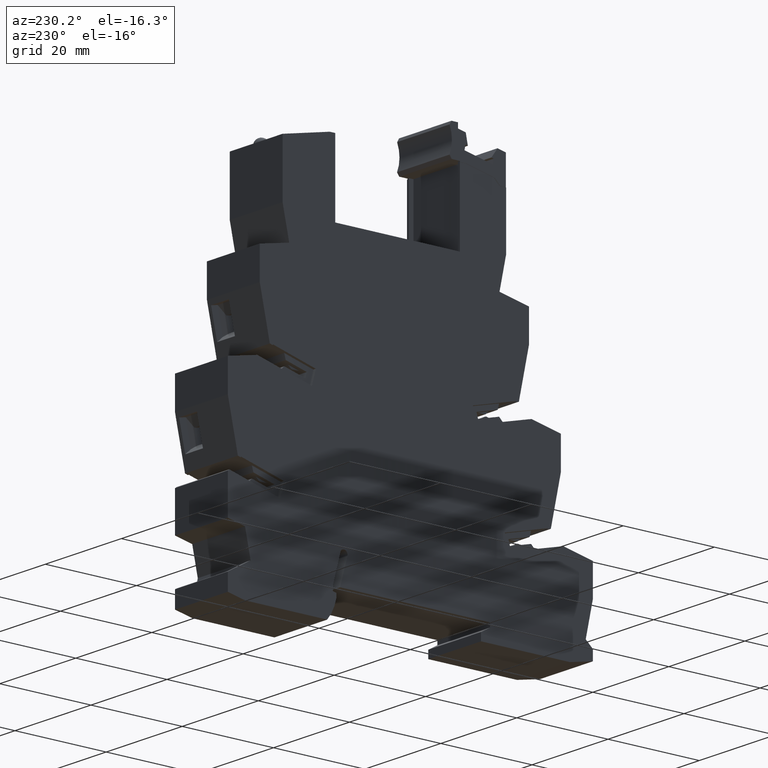
[diagram: clean part render]
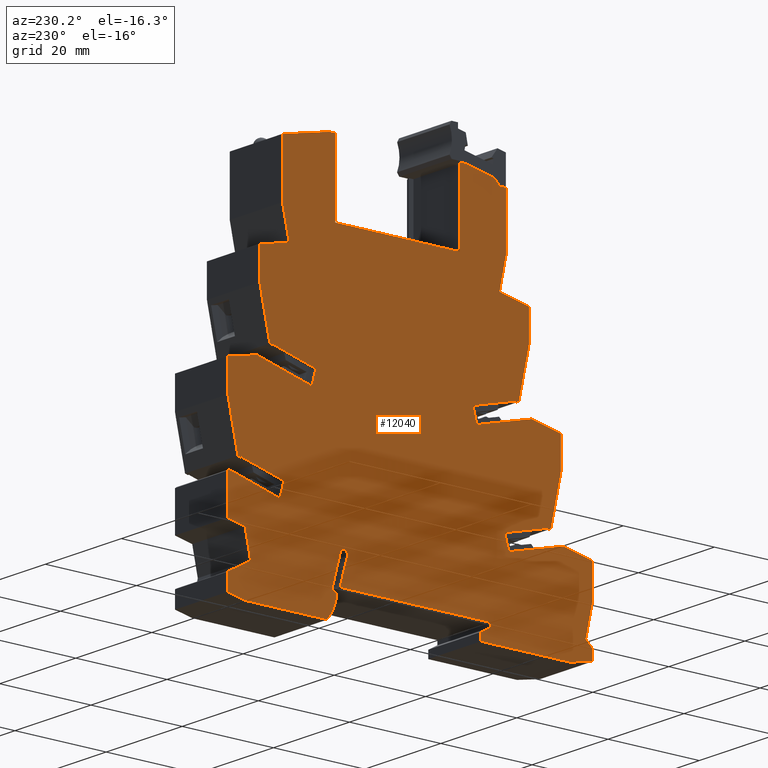
[diagram: same view with one face highlighted and labeled with its STEP entity id]
A machine part, auxiliary view. The second image highlights one B-rep face of the part: STEP entity #12040.
In plain terms, the highlighted planar face has unit normal (-1, -0, 0).
Its self-contained STEP definition (entity closure, byte-faithful):
#6190=CARTESIAN_POINT('',(-16.9245579999999,42.8260049999997,
-0.800000000002775));
#6200=DIRECTION('',(6.05765437811101E-15,-0.,1.));
#6210=DIRECTION('',(1.,0.,-6.05765437811101E-15));
#6220=AXIS2_PLACEMENT_3D('',#6190,#6200,#6210);
#6230=PLANE('',#6220);
#6240=CARTESIAN_POINT('',(13.902360681366,76.6053697053433,
-0.800000000002909));
#6250=DIRECTION('',(0.978147600733792,-0.207911690817823,
-1.13595970351826E-28));
#6260=VECTOR('',#6250,1.);
#6270=LINE('',#6240,#6260);
#6280=CARTESIAN_POINT('',(13.457160147901,76.6999999699404,
-0.800000000002907));
#6290=VERTEX_POINT('',#6280);
#6300=CARTESIAN_POINT('',(19.6798291213013,75.3773308785931,
-0.800000000002907));
#6310=VERTEX_POINT('',#6300);
#6320=EDGE_CURVE('',#6290,#6310,#6270,.T.);
#6330=ORIENTED_EDGE('',*,*,#6320,.F.);
#6340=CARTESIAN_POINT('',(43.9513383518614,51.105821648028,
-0.800000000002909));
#6350=DIRECTION('',(0.707106781186473,-0.707106781186622,
1.38839519318898E-28));
#6360=VECTOR('',#6350,1.);
#6370=LINE('',#6340,#6360);
#6380=CARTESIAN_POINT('',(20.9071599998747,74.1500000000195,
-0.800000000002909));
#6390=VERTEX_POINT('',#6380);
#6400=EDGE_CURVE('',#6310,#6390,#6370,.T.);
#6410=ORIENTED_EDGE('',*,*,#6400,.F.);
#6420=CARTESIAN_POINT('',(13.9023606813659,74.15000000002,
-0.800000000002909));
#6430=DIRECTION('',(1.,-6.25650888100443E-14,-1.89326617253043E-28));
#6440=VECTOR('',#6430,1.);
#6450=LINE('',#6420,#6440);
#6460=CARTESIAN_POINT('',(22.2071599998067,74.1500000000194,
-0.800000000002909));
#6470=VERTEX_POINT('',#6460);
#6480=EDGE_CURVE('',#6390,#6470,#6450,.T.);
#6490=ORIENTED_EDGE('',*,*,#6480,.F.);
#6500=CARTESIAN_POINT('',(13.9023606813659,74.1500000000385,
-0.800000000002909));
#6510=DIRECTION('',(-1.,6.25650888220284E-14,1.89326617253043E-28));
#6520=VECTOR('',#6510,1.);
#6530=LINE('',#6500,#6520);
#6540=CARTESIAN_POINT('',(22.3071599999996,74.1500000000194,
-0.800000000002909));
#6550=VERTEX_POINT('',#6540);
#6560=EDGE_CURVE('',#6550,#6470,#6530,.T.);
#6570=ORIENTED_EDGE('',*,*,#6560,.T.);
#6580=CARTESIAN_POINT('',(22.3071599999982,51.1058216480293,
-0.800000000002909));
#6590=DIRECTION('',(6.25650888248224E-14,1.,-3.81404366214674E-28));
#6600=VECTOR('',#6590,1.);
#6610=LINE('',#6580,#6600);
#6620=CARTESIAN_POINT('',(22.3071599999989,62.4210968244649,
-0.800000000003014));
#6630=VERTEX_POINT('',#6620);
#6640=EDGE_CURVE('',#6630,#6550,#6610,.T.);
#6650=ORIENTED_EDGE('',*,*,#6640,.T.);
#6660=CARTESIAN_POINT('',(19.9020240141431,51.1058216480295,
-0.800000000002909));
#6670=DIRECTION('',(0.20791169081797,0.978147600733761,
-4.1336311433581E-28));
#6680=VECTOR('',#6670,1.);
#6690=LINE('',#6660,#6680);
#6700=CARTESIAN_POINT('',(20.8513856934908,55.5722171894691,
-0.800000000003004));
#6710=VERTEX_POINT('',#6700);
#6720=EDGE_CURVE('',#6710,#6630,#6690,.T.);
#6730=ORIENTED_EDGE('',*,*,#6720,.T.);
#6740=CARTESIAN_POINT('',(13.9023606813648,57.0492780530082,
-0.800000000002909));
#6750=DIRECTION('',(-0.97814760073373,0.207911690818114,
1.0097419586829E-28));
#6760=VECTOR('',#6750,1.);
#6770=LINE('',#6740,#6760);
#6780=CARTESIAN_POINT('',(27.3071599999254,54.1999999999732,
-0.800000000003043));
#6790=VERTEX_POINT('',#6780);
#6800=EDGE_CURVE('',#6790,#6710,#6770,.T.);
#6810=ORIENTED_EDGE('',*,*,#6800,.T.);
#6820=CARTESIAN_POINT('',(27.3071599999252,51.105821648029,
-0.800000000002909));
#6830=DIRECTION('',(7.52336794624177E-14,1.,-3.81404366214676E-28));
#6840=VECTOR('',#6830,1.);
#6850=LINE('',#6820,#6840);
#6860=CARTESIAN_POINT('',(27.3071599999249,47.4663726134532,
-0.800000000002909));
#6870=VERTEX_POINT('',#6860);
#6880=EDGE_CURVE('',#6870,#6790,#6850,.T.);
#6890=ORIENTED_EDGE('',*,*,#6880,.T.);
#6900=CARTESIAN_POINT('',(28.0807487730885,51.105821648029,
-0.800000000002909));
#6910=DIRECTION('',(0.207911690817972,0.978147600733761,
-4.1336311433581E-28));
#6920=VECTOR('',#6910,1.);
#6930=LINE('',#6900,#6920);
#6940=CARTESIAN_POINT('',(25.103072832219,37.0969577603597,
-0.800000000002909));
#6950=VERTEX_POINT('',#6940);
#6960=EDGE_CURVE('',#6950,#6870,#6930,.T.);
#6970=ORIENTED_EDGE('',*,*,#6960,.T.);
#6980=CARTESIAN_POINT('',(13.9023606813634,34.0957359848845,
-0.800000000002909));
#6990=DIRECTION('',(0.965925826289068,0.258819045102521,
-2.77679038637796E-28));
#7000=VECTOR('',#6990,1.);
#7010=LINE('',#6980,#7000);
#7020=CARTESIAN_POINT('',(24.4618552155885,36.925144017811,
-0.800000000002909));
#7030=VERTEX_POINT('',#7020);
#7040=EDGE_CURVE('',#7030,#6950,#7010,.T.);
#7050=ORIENTED_EDGE('',*,*,#7040,.T.);
#7060=CARTESIAN_POINT('',(20.6621540964455,51.1058216480294,
-0.800000000002909));
#7070=DIRECTION('',(0.258819045102513,-0.965925826289071,
3.18699805709289E-28));
#7080=VECTOR('',#7070,1.);
#7090=LINE('',#7060,#7080);
#7100=CARTESIAN_POINT('',(24.4230395694981,37.0700059811492,
-0.800000000003026));
#7110=VERTEX_POINT('',#7100);
#7120=EDGE_CURVE('',#7110,#7030,#7090,.T.);
#7130=ORIENTED_EDGE('',*,*,#7120,.T.);
#7140=CARTESIAN_POINT('',(13.9023606813634,34.2509985692488,
-0.800000000002909));
#7150=DIRECTION('',(0.965925826289124,0.258819045102314,
-2.77679038637796E-28));
#7160=VECTOR('',#7150,1.);
#7170=LINE('',#7140,#7160);
#7180=CARTESIAN_POINT('',(15.0222525707411,34.5510726569345,
-0.800000000002969));
#7190=VERTEX_POINT('',#7180);
#7200=EDGE_CURVE('',#7190,#7110,#7170,.T.);
#7210=ORIENTED_EDGE('',*,*,#7200,.T.);
#7220=CARTESIAN_POINT('',(24.2801845867909,-1.98951966012828E-13,
-0.800000000003025));
#7230=DIRECTION('',(-0.258819045102392,0.965925826289103,
1.55816713284503E-15));
#7240=VECTOR('',#7230,1.);
#7250=LINE('',#7220,#7240);
#7260=CARTESIAN_POINT('',(15.8763554096513,31.3635174672313,
-0.800000000002975));
#7270=VERTEX_POINT('',#7260);
#7280=EDGE_CURVE('',#7270,#7190,#7250,.T.);
#7290=ORIENTED_EDGE('',*,*,#7280,.T.);
#7300=CARTESIAN_POINT('',(13.9023606813632,30.8345871739233,
-0.800000000002909));
#7310=DIRECTION('',(-0.965925826289082,-0.258819045102471,
2.90300813121332E-28));
#7320=VECTOR('',#7310,1.);
#7330=LINE('',#7300,#7320);
#7340=CARTESIAN_POINT('',(27.8513857524815,34.5722171769302,
-0.800000000003047));
#7350=VERTEX_POINT('',#7340);
#7360=EDGE_CURVE('',#7350,#7270,#7330,.T.);
#7370=ORIENTED_EDGE('',*,*,#7360,.T.);
#7380=CARTESIAN_POINT('',(13.9023606813636,37.5371739847012,
-0.800000000002909));
#7390=DIRECTION('',(-0.97814760073373,0.207911690818114,
1.0097419586829E-28));
#7400=VECTOR('',#7390,1.);
#7410=LINE('',#7380,#7400);
#7420=CARTESIAN_POINT('',(34.3071599999265,33.1999999999729,
-0.800000000003085));
#7430=VERTEX_POINT('',#7420);
#7440=EDGE_CURVE('',#7430,#7350,#7410,.T.);
#7450=ORIENTED_EDGE('',*,*,#7440,.T.);
#7460=CARTESIAN_POINT('',(34.3071599999278,51.1058216480286,
-0.800000000002909));
#7470=DIRECTION('',(7.52336794680823E-14,1.,-3.81404366214677E-28));
#7480=VECTOR('',#7470,1.);
#7490=LINE('',#7460,#7480);
#7500=CARTESIAN_POINT('',(34.307159999926,26.4663740067623,
-0.800000000002909));
#7510=VERTEX_POINT('',#7500);
#7520=EDGE_CURVE('',#7510,#7430,#7490,.T.);
#7530=ORIENTED_EDGE('',*,*,#7520,.T.);
#7540=CARTESIAN_POINT('',(39.5444362720076,51.1058216480283,
-0.800000000002909));
#7550=DIRECTION('',(0.207911690817972,0.978147600733761,
-4.1336311433581E-28));
#7560=VECTOR('',#7550,1.);
#7570=LINE('',#7540,#7560);
#7580=CARTESIAN_POINT('',(32.1030725181768,16.0969576762118,
-0.800000000003072));
#7590=VERTEX_POINT('',#7580);
#7600=EDGE_CURVE('',#7590,#7510,#7570,.T.);
#7610=ORIENTED_EDGE('',*,*,#7600,.T.);
#7620=CARTESIAN_POINT('',(13.9023606813619,11.2200916378656,
-0.800000000002909));
#7630=DIRECTION('',(0.965925826289068,0.258819045102521,
-2.77679038637796E-28));
#7640=VECTOR('',#7630,1.);
#7650=LINE('',#7620,#7640);
#7660=CARTESIAN_POINT('',(31.4618552155888,15.9251440178104,
-0.800000000003068));
#7670=VERTEX_POINT('',#7660);
#7680=EDGE_CURVE('',#7670,#7590,#7650,.T.);
#7690=ORIENTED_EDGE('',*,*,#7680,.T.);
#7700=CARTESIAN_POINT('',(35.7289846945104,-1.98951966012828E-13,
-0.800000000003094));
#7710=DIRECTION('',(0.25881904510252,-0.965925826289068,
-1.57204492066405E-15));
#7720=VECTOR('',#7710,1.);
#7730=LINE('',#7700,#7720);
#7740=CARTESIAN_POINT('',(31.4230395794324,16.070005944074,
-0.800000000003068));
#7750=VERTEX_POINT('',#7740);
#7760=EDGE_CURVE('',#7750,#7670,#7730,.T.);
#7770=ORIENTED_EDGE('',*,*,#7760,.T.);
#7780=CARTESIAN_POINT('',(0.207621999999484,7.7058600122735,
-0.800000000002879));
#7790=DIRECTION('',(0.965925826289137,0.258819045102265,
-5.83454228237228E-15));
#7800=VECTOR('',#7790,1.);
#7810=LINE('',#7780,#7800);
#7820=CARTESIAN_POINT('',(22.0198027403499,13.5504162268059,
-0.800000000003011));
#7830=VERTEX_POINT('',#7820);
#7840=EDGE_CURVE('',#7830,#7750,#7810,.T.);
#7850=ORIENTED_EDGE('',*,*,#7840,.T.);
#7860=CARTESIAN_POINT('',(25.6506258254262,-1.98951966012828E-13,
-0.800000000003034));
#7870=DIRECTION('',(-0.258819045102391,0.965925826289103,
1.57204492065281E-15));
#7880=VECTOR('',#7870,1.);
#7890=LINE('',#7860,#7880);
#7900=CARTESIAN_POINT('',(22.8739055792484,10.3628610371462,
-0.800000000003017));
#7910=VERTEX_POINT('',#7900);
#7920=EDGE_CURVE('',#7910,#7830,#7890,.T.);
#7930=ORIENTED_EDGE('',*,*,#7920,.T.);
#7940=CARTESIAN_POINT('',(13.9023606813617,7.95894282689689,
-0.800000000002909));
#7950=DIRECTION('',(-0.965925826289042,-0.258819045102618,
2.77679038637796E-28));
#7960=VECTOR('',#7950,1.);
#7970=LINE('',#7940,#7960);
#7980=CARTESIAN_POINT('',(34.8513856870555,13.5722171593942,
-0.800000000003089));
#7990=VERTEX_POINT('',#7980);
#8000=EDGE_CURVE('',#7990,#7910,#7970,.T.);
#8010=ORIENTED_EDGE('',*,*,#8000,.T.);
#8020=CARTESIAN_POINT('',(13.9023606813624,18.0250698849491,
-0.800000000002909));
#8030=DIRECTION('',(-0.978147600733754,0.207911690818003,
1.0097419586829E-28));
#8040=VECTOR('',#8030,1.);
#8050=LINE('',#8020,#8040);
#8060=CARTESIAN_POINT('',(41.3071598519146,12.1999999999919,
-0.800000000003128));
#8070=VERTEX_POINT('',#8060);
#8080=EDGE_CURVE('',#8070,#7990,#8050,.T.);
#8090=ORIENTED_EDGE('',*,*,#8080,.T.);
#8100=CARTESIAN_POINT('',(41.3071598519131,51.1058216480282,
-0.800000000002909));
#8110=DIRECTION('',(-3.84531582535338E-14,1.,-3.81404366214656E-28));
#8120=VECTOR('',#8110,1.);
#8130=LINE('',#8100,#8120);
#8140=CARTESIAN_POINT('',(41.3071598519149,5.46637122094938,
-0.800000000003128));
#8150=VERTEX_POINT('',#8140);
#8160=EDGE_CURVE('',#8150,#8070,#8130,.T.);
#8170=ORIENTED_EDGE('',*,*,#8160,.T.);
#8180=CARTESIAN_POINT('',(51.0081245112033,51.1058216480275,
-0.800000000002909));
#8190=DIRECTION('',(0.207911690817746,0.978147600733809,
-4.1336311433581E-28));
#8200=VECTOR('',#8190,1.);
#8210=LINE('',#8180,#8200);
#8220=CARTESIAN_POINT('',(39.7528218855734,-1.84621397580662,
-0.800000000003119));
#8230=VERTEX_POINT('',#8220);
#8240=EDGE_CURVE('',#8230,#8150,#8210,.T.);
#8250=ORIENTED_EDGE('',*,*,#8240,.T.);
#8260=CARTESIAN_POINT('',(13.9023606813626,21.4296458395488,
-0.800000000002909));
#8270=DIRECTION('',(-0.743144825475685,0.669130606360757,
-1.13595970351826E-28));
#8280=VECTOR('',#8270,1.);
#8290=LINE('',#8260,#8280);
#8300=CARTESIAN_POINT('',(41.3071599999469,-3.24574630020197,
-0.800000000003128));
#8310=VERTEX_POINT('',#8300);
#8320=EDGE_CURVE('',#8310,#8230,#8290,.T.);
#8330=ORIENTED_EDGE('',*,*,#8320,.T.);
#8340=CARTESIAN_POINT('',(41.3071599999503,51.1058216480282,
-0.800000000002909));
#8350=DIRECTION('',(6.2927737309785E-14,1.,-3.81404366214674E-28));
#8360=VECTOR('',#8350,1.);
#8370=LINE('',#8340,#8360);
#8380=CARTESIAN_POINT('',(41.3071599999468,-5.42658936356421,
-0.800000000002909));
#8390=VERTEX_POINT('',#8380);
#8400=EDGE_CURVE('',#8390,#8310,#8370,.T.);
#8410=ORIENTED_EDGE('',*,*,#8400,.T.);
#8420=CARTESIAN_POINT('',(13.9023606813605,-11.2516592799779,
-0.800000000002909));
#8430=DIRECTION('',(0.97814760073382,0.207911690817693,
-2.6505726415426E-28));
#8440=VECTOR('',#8430,1.);
#8450=LINE('',#8420,#8440);
#8460=CARTESIAN_POINT('',(36.2571599999291,-6.50000000000123,
-0.800000000002909));
#8470=VERTEX_POINT('',#8460);
#8480=EDGE_CURVE('',#8470,#8390,#8450,.T.);
#8490=ORIENTED_EDGE('',*,*,#8480,.T.);
#8500=CARTESIAN_POINT('',(13.9023606813608,-6.49999999999982,
-0.800000000002909));
#8510=DIRECTION('',(1.,-6.27464130514497E-14,-1.89326617253043E-28));
#8520=VECTOR('',#8510,1.);
#8530=LINE('',#8500,#8520);
#8540=CARTESIAN_POINT('',(16.8071599999436,-6.5,-0.800000000002909));
#8550=VERTEX_POINT('',#8540);
#8560=EDGE_CURVE('',#8550,#8470,#8530,.T.);
#8570=ORIENTED_EDGE('',*,*,#8560,.T.);
#8580=CARTESIAN_POINT('',(16.8071599999472,51.1058216480297,
-0.800000000002909));
#8590=DIRECTION('',(-6.2746413039548E-14,-1.,3.81404366214674E-28));
#8600=VECTOR('',#8590,1.);
#8610=LINE('',#8580,#8600);
#8620=CARTESIAN_POINT('',(16.8071599999437,-4.85470053837341,
-0.800000000002909));
#8630=VERTEX_POINT('',#8620);
#8640=EDGE_CURVE('',#8630,#8550,#8610,.T.);
#8650=ORIENTED_EDGE('',*,*,#8640,.T.);
#8660=CARTESIAN_POINT('',(13.9023606813608,-6.53178720689883,
-0.800000000002909));
#8670=DIRECTION('',(-0.86602540378447,-0.499999999999945,
3.66031460022549E-28));
#8680=VECTOR('',#8670,1.);
#8690=LINE('',#8660,#8680);
#8700=CARTESIAN_POINT('',(18.8071599999436,-3.69999999999438,
-0.800000000002909));
#8710=VERTEX_POINT('',#8700);
#8720=EDGE_CURVE('',#8710,#8630,#8690,.T.);
#8730=ORIENTED_EDGE('',*,*,#8720,.T.);
#8740=CARTESIAN_POINT('',(18.807159999947,51.1058216480296,
-0.800000000002909));
#8750=DIRECTION('',(-6.2746413039548E-14,-1.,3.81404366214674E-28));
#8760=VECTOR('',#8750,1.);
#8770=LINE('',#8740,#8760);
#8780=CARTESIAN_POINT('',(18.8071599999437,-2.79999999999438,
-0.800000000002909));
#8790=VERTEX_POINT('',#8780);
#8800=EDGE_CURVE('',#8790,#8710,#8770,.T.);
#8810=ORIENTED_EDGE('',*,*,#8800,.T.);
#8820=CARTESIAN_POINT('',(13.9023606813611,-2.79999999999408,
-0.800000000002909));
#8830=DIRECTION('',(1.,-6.29277373059034E-14,-1.89326617253043E-28));
#8840=VECTOR('',#8830,1.);
#8850=LINE('',#8820,#8840);
#8860=CARTESIAN_POINT('',(-14.0928400000563,-2.79999999999233,
-0.800000000002909));
#8870=VERTEX_POINT('',#8860);
#8880=EDGE_CURVE('',#8870,#8790,#8850,.T.);
#8890=ORIENTED_EDGE('',*,*,#8880,.T.);
#8900=CARTESIAN_POINT('',(1.00795034693147,51.1058216480307,
-0.800000000002909));
#8910=DIRECTION('',(-0.269748530351999,-0.962930802484237,
4.19674001577578E-28));
#8920=VECTOR('',#8910,1.);
#8930=LINE('',#8900,#8920);
#8940=CARTESIAN_POINT('',(-12.4724953580686,2.98420117572594,
-0.800000000002909));
#8950=VERTEX_POINT('',#8940);
#8960=EDGE_CURVE('',#8950,#8870,#8930,.T.);
#8970=ORIENTED_EDGE('',*,*,#8960,.T.);
#8980=CARTESIAN_POINT('',(-13.242840000056,3.20000000000755,
-0.800000000002909));
#8990=DIRECTION('',(-6.27941947176454E-14,4.3091449959983E-27,1.));
#9000=DIRECTION('',(-1.,6.29277372940018E-14,-6.27941947176454E-14));
#9010=AXIS2_PLACEMENT_3D('',#8980,#8990,#9000);
#9020=CIRCLE('',#9010,0.799999999999996);
#9030=CARTESIAN_POINT('',(-14.0151408989997,3.40868953374305,
-0.800000000002909));
#9040=VERTEX_POINT('',#9030);
#9050=EDGE_CURVE('',#8950,#9040,#9020,.T.);
#9060=ORIENTED_EDGE('',*,*,#9050,.F.);
#9070=CARTESIAN_POINT('',(-1.12652161206035,51.1058216480308,
-0.800000000002909));
#9080=DIRECTION('',(0.260861917169258,0.965376123679667,
-4.19674001577578E-28));
#9090=VECTOR('',#9080,1.);
#9100=LINE('',#9070,#9090);
#9110=CARTESIAN_POINT('',(-15.6928400000563,-2.79999999999218,
-0.800000000002909));
#9120=VERTEX_POINT('',#9110);
#9130=EDGE_CURVE('',#9120,#9040,#9100,.T.);
#9140=ORIENTED_EDGE('',*,*,#9130,.T.);
#9150=CARTESIAN_POINT('',(-15.6928400000529,51.1058216480317,
-0.800000000002909));
#9160=DIRECTION('',(6.2746413039548E-14,1.,-3.81404366214674E-28));
#9170=VECTOR('',#9160,1.);
#9180=LINE('',#9150,#9170);
#9190=CARTESIAN_POINT('',(-15.6928400000563,-3.74999999999226,
-0.800000000002909));
#9200=VERTEX_POINT('',#9190);
#9210=EDGE_CURVE('',#9200,#9120,#9180,.T.);
#9220=ORIENTED_EDGE('',*,*,#9210,.T.);
#9230=CARTESIAN_POINT('',(13.9023606813605,-11.6800101224169,
-0.800000000002909));
#9240=DIRECTION('',(-0.965925826289052,0.258819045102581,
8.83524213847533E-29));
#9250=VECTOR('',#9240,1.);
#9260=LINE('',#9230,#9250);
#9270=CARTESIAN_POINT('',(-14.8928400000566,-3.96435935393714,
-0.800000000002909));
#9280=VERTEX_POINT('',#9270);
#9290=EDGE_CURVE('',#9280,#9200,#9260,.T.);
#9300=ORIENTED_EDGE('',*,*,#9290,.T.);
#9310=CARTESIAN_POINT('',(-14.8928400000531,51.1058216480317,
-0.800000000002909));
#9320=DIRECTION('',(6.29277372940018E-14,1.,-3.81404366214674E-28));
#9330=VECTOR('',#9320,1.);
#9340=LINE('',#9310,#9330);
#9350=CARTESIAN_POINT('',(-14.8928400000567,-4.83907194295931,
-0.800000000002325));
#9360=VERTEX_POINT('',#9350);
#9370=EDGE_CURVE('',#9360,#9280,#9340,.T.);
#9380=ORIENTED_EDGE('',*,*,#9370,.T.);
#9390=CARTESIAN_POINT('',(-24.1928400000564,-2.8999999999917,
-0.800000000002909));
#9400=DIRECTION('',(-6.27941947176454E-14,4.3091449959983E-27,1.));
#9410=DIRECTION('',(-1.,6.29277372940018E-14,-6.27941947176454E-14));
#9420=AXIS2_PLACEMENT_3D('',#9390,#9400,#9410);
#9430=CIRCLE('',#9420,9.49999999999998);
#9440=CARTESIAN_POINT('',(-16.9099834176435,-8.99999999999211,
-0.800000000002451));
#9450=VERTEX_POINT('',#9440);
#9460=EDGE_CURVE('',#9450,#9360,#9430,.T.);
#9470=ORIENTED_EDGE('',*,*,#9460,.T.);
#9480=CARTESIAN_POINT('',(13.9023606813607,-8.99999999999405,
-0.800000000002909));
#9490=DIRECTION('',(1.,-6.29277373059034E-14,-1.89326617253043E-28));
#9500=VECTOR('',#9490,1.);
#9510=LINE('',#9480,#9500);
#9520=CARTESIAN_POINT('',(-34.8928400000569,-8.99999999999097,
-0.800000000002909));
#9530=VERTEX_POINT('',#9520);
#9540=EDGE_CURVE('',#9530,#9450,#9510,.T.);
#9550=ORIENTED_EDGE('',*,*,#9540,.T.);
#9560=CARTESIAN_POINT('',(13.90236068136,-19.2726738276612,
-0.800000000002909));
#9570=DIRECTION('',(0.978549784986735,-0.206010481049909,
-1.13595970351826E-28));
#9580=VECTOR('',#9570,1.);
#9590=LINE('',#9560,#9580);
#9600=CARTESIAN_POINT('',(-38.6928400000569,-8.1999999999907,
-0.800000000002909));
#9610=VERTEX_POINT('',#9600);
#9620=EDGE_CURVE('',#9610,#9530,#9590,.T.);
#9630=ORIENTED_EDGE('',*,*,#9620,.T.);
#9640=CARTESIAN_POINT('',(-38.6928400000531,51.1058216480332,
-0.800000000002909));
#9650=DIRECTION('',(-6.2746413039548E-14,-1.,3.81404366214674E-28));
#9660=VECTOR('',#9650,1.);
#9670=LINE('',#9640,#9660);
#9680=CARTESIAN_POINT('',(-38.6928400000566,-4.63038475766932,
-0.800000000002909));
#9690=VERTEX_POINT('',#9680);
#9700=EDGE_CURVE('',#9690,#9610,#9670,.T.);
#9710=ORIENTED_EDGE('',*,*,#9700,.T.);
#9720=CARTESIAN_POINT('',(13.9023606813628,25.7354685138262,
-0.800000000002909));
#9730=DIRECTION('',(-0.86602540378447,-0.499999999999946,
3.53409685539013E-28));
#9740=VECTOR('',#9730,1.);
#9750=LINE('',#9720,#9740);
#9760=CARTESIAN_POINT('',(-33.7002853817293,-1.74793200483453,
-0.800000000002674));
#9770=VERTEX_POINT('',#9760);
#9780=EDGE_CURVE('',#9770,#9690,#9750,.T.);
#9790=ORIENTED_EDGE('',*,*,#9780,.T.);
#9800=CARTESIAN_POINT('',(-44.8273914139087,51.1058216480335,
-0.800000000002909));
#9810=DIRECTION('',(0.206010481049782,-0.978549784986762,
3.34477023813709E-28));
#9820=VECTOR('',#9810,1.);
#9830=LINE('',#9800,#9820);
#9840=CARTESIAN_POINT('',(-34.9111896091924,4.00386307561664,
-0.800000000002909));
#9850=VERTEX_POINT('',#9840);
#9860=EDGE_CURVE('',#9850,#9770,#9830,.T.);
#9870=ORIENTED_EDGE('',*,*,#9860,.T.);
#9880=CARTESIAN_POINT('',(13.9023606813608,-6.2726738276611,
-0.800000000002909));
#9890=DIRECTION('',(0.978549784986735,-0.206010481049907,
-1.13595970351826E-28));
#9900=VECTOR('',#9890,1.);
#9910=LINE('',#9880,#9900);
#9920=CARTESIAN_POINT('',(-38.6928400000953,4.80000000001752,
-0.800000000002909));
#9930=VERTEX_POINT('',#9920);
#9940=EDGE_CURVE('',#9930,#9850,#9910,.T.);
#9950=ORIENTED_EDGE('',*,*,#9940,.T.);
#9960=CARTESIAN_POINT('',(-38.6928400000924,51.1058216480332,
-0.800000000002909));
#9970=DIRECTION('',(-6.2746413039548E-14,-1.,3.81404366214674E-28));
#9980=VECTOR('',#9970,1.);
#9990=LINE('',#9960,#9980);
#10000=CARTESIAN_POINT('',(-38.6928400000527,13.1023603076509,
-0.800000000002643));
#10010=VERTEX_POINT('',#10000);
#10020=EDGE_CURVE('',#10010,#9930,#9990,.T.);
#10030=ORIENTED_EDGE('',*,*,#10020,.T.);
#10040=CARTESIAN_POINT('',(0.207621999999484,42.9517346451428,
-0.800000000002879));
#10050=DIRECTION('',(-0.793353340291217,-0.608761429008745,
4.81196661607707E-15));
#10060=VECTOR('',#10050,1.);
#10070=LINE('',#10040,#10060);
#10080=CARTESIAN_POINT('',(-38.3798491333444,13.3425266760633,
-0.800000000002646));
#10090=VERTEX_POINT('',#10080);
#10100=EDGE_CURVE('',#10090,#10010,#10070,.T.);
#10110=ORIENTED_EDGE('',*,*,#10100,.T.);
#10120=CARTESIAN_POINT('',(13.9023606813612,-0.666449222295057,
-0.800000000002909));
#10130=DIRECTION('',(-0.965925826289099,0.258819045102408,
7.57306469012171E-29));
#10140=VECTOR('',#10130,1.);
#10150=LINE('',#10120,#10140);
#10160=CARTESIAN_POINT('',(-27.2595855792674,10.3628610371285,
-0.800000000002713));
#10170=VERTEX_POINT('',#10160);
#10180=EDGE_CURVE('',#10170,#10090,#10150,.T.);
#10190=ORIENTED_EDGE('',*,*,#10180,.T.);
#10200=CARTESIAN_POINT('',(-30.0363058254434,-1.98951966012828E-13,
-0.800000000002696));
#10210=DIRECTION('',(-0.258819045102645,-0.965925826289035,
1.55816713286708E-15));
#10220=VECTOR('',#10210,1.);
#10230=LINE('',#10200,#10220);
#10240=CARTESIAN_POINT('',(-26.4054827403486,13.5504162268608,
-0.800000000002718));
#10250=VERTEX_POINT('',#10240);
#10260=EDGE_CURVE('',#10250,#10170,#10230,.T.);
#10270=ORIENTED_EDGE('',*,*,#10260,.T.);
#10280=CARTESIAN_POINT('',(0.207621999999484,6.41945630359966,
-0.800000000002879));
#10290=DIRECTION('',(0.965925826289069,-0.258819045102519,
-5.83454228236638E-15));
#10300=VECTOR('',#10290,1.);
#10310=LINE('',#10280,#10300);
#10320=CARTESIAN_POINT('',(-35.8087195795603,16.0700059441661,
-0.800000000002662));
#10330=VERTEX_POINT('',#10320);
#10340=EDGE_CURVE('',#10330,#10250,#10310,.T.);
#10350=ORIENTED_EDGE('',*,*,#10340,.T.);
#10360=CARTESIAN_POINT('',(-40.1146646946513,-1.98951966012828E-13,
-0.800000000002635));
#10370=DIRECTION('',(0.258819045101863,0.965925826289245,
-1.57204492060692E-15));
#10380=VECTOR('',#10370,1.);
#10390=LINE('',#10360,#10380);
#10400=CARTESIAN_POINT('',(-35.8475352157473,15.9251440177875,
-0.800000000002909));
#10410=VERTEX_POINT('',#10400);
#10420=EDGE_CURVE('',#10410,#10330,#10390,.T.);
#10430=ORIENTED_EDGE('',*,*,#10420,.T.);
#10440=CARTESIAN_POINT('',(13.9023606813614,2.59469958866107,
-0.800000000002909));
#10450=DIRECTION('',(0.965925826289244,-0.258819045101864,
-8.83524213847533E-29));
#10460=VECTOR('',#10450,1.);
#10470=LINE('',#10440,#10460);
#10480=CARTESIAN_POINT('',(-36.4887528323285,16.0969577603226,
-0.800000000002657));
#10490=VERTEX_POINT('',#10480);
#10500=EDGE_CURVE('',#10490,#10410,#10470,.T.);
#10510=ORIENTED_EDGE('',*,*,#10500,.T.);
#10520=CARTESIAN_POINT('',(-43.9301165682774,51.1058216480335,
-0.800000000002909));
#10530=DIRECTION('',(0.207911690817847,-0.978147600733787,
3.34477023813709E-28));
#10540=VECTOR('',#10530,1.);
#10550=LINE('',#10520,#10540);
#10560=CARTESIAN_POINT('',(-38.6928398520736,26.4663719173214,
-0.800000000002643));
#10570=VERTEX_POINT('',#10560);
#10580=EDGE_CURVE('',#10570,#10490,#10550,.T.);
#10590=ORIENTED_EDGE('',*,*,#10580,.T.);
#10600=CARTESIAN_POINT('',(-38.6928398520742,51.1058216480332,
-0.800000000002909));
#10610=DIRECTION('',(2.63517272777463E-14,-1.,3.81404366214657E-28));
#10620=VECTOR('',#10610,1.);
#10630=LINE('',#10600,#10620);
#10640=CARTESIAN_POINT('',(-38.6928398520737,33.1999999999753,
-0.800000000002644));
#10650=VERTEX_POINT('',#10640);
#10660=EDGE_CURVE('',#10650,#10570,#10630,.T.);
#10670=ORIENTED_EDGE('',*,*,#10660,.T.);
#10680=CARTESIAN_POINT('',(13.902360681364,44.3794549857211,
-0.800000000002909));
#10690=DIRECTION('',(-0.978147600733756,-0.207911690817991,
2.6505726415426E-28));
#10700=VECTOR('',#10690,1.);
#10710=LINE('',#10680,#10700);
#10720=CARTESIAN_POINT('',(-32.237065852248,34.5722171242985,
-0.800000000002683));
#10730=VERTEX_POINT('',#10720);
#10740=EDGE_CURVE('',#10730,#10650,#10710,.T.);
#10750=ORIENTED_EDGE('',*,*,#10740,.T.);
#10760=CARTESIAN_POINT('',(13.9023606813626,22.2091950453826,
-0.800000000002909));
#10770=DIRECTION('',(-0.965925826289069,0.258819045102518,
8.83524213847533E-29));
#10780=VECTOR('',#10770,1.);
#10790=LINE('',#10760,#10780);
#10800=CARTESIAN_POINT('',(-20.259585589177,31.3628610001345,
-0.800000000002755));
#10810=VERTEX_POINT('',#10800);
#10820=EDGE_CURVE('',#10810,#10730,#10790,.T.);
#10830=ORIENTED_EDGE('',*,*,#10820,.T.);
#10840=CARTESIAN_POINT('',(-28.6632388664969,-1.98951966012828E-13,
-0.800000000002705));
#10850=DIRECTION('',(-0.258819045102645,-0.965925826289035,
1.55816713286708E-15));
#10860=VECTOR('',#10850,1.);
#10870=LINE('',#10840,#10860);
#10880=CARTESIAN_POINT('',(-19.4054827403458,34.55041622686,
-0.80000000000276));
#10890=VERTEX_POINT('',#10880);
#10900=EDGE_CURVE('',#10890,#10810,#10870,.T.);
#10910=ORIENTED_EDGE('',*,*,#10900,.T.);
#10920=CARTESIAN_POINT('',(13.9023606813628,25.6256064407122,
-0.800000000002909));
#10930=DIRECTION('',(0.965925826289106,-0.258819045102379,
-8.83524213847533E-29));
#10940=VECTOR('',#10930,1.);
#10950=LINE('',#10920,#10940);
#10960=CARTESIAN_POINT('',(-28.8087198656887,37.0700059811485,
-0.800000000002909));
#10970=VERTEX_POINT('',#10960);
#10980=EDGE_CURVE('',#10970,#10890,#10950,.T.);
#10990=ORIENTED_EDGE('',*,*,#10980,.T.);
#11000=CARTESIAN_POINT('',(-25.0478343926343,51.1058216480323,
-0.800000000002909));
#11010=DIRECTION('',(0.258819045102567,0.965925826289056,
-4.1336311433581E-28));
#11020=VECTOR('',#11010,1.);
#11030=LINE('',#11000,#11020);
#11040=CARTESIAN_POINT('',(-28.8475355117786,36.9251440178123,
-0.800000000002909));
#11050=VERTEX_POINT('',#11040);
#11060=EDGE_CURVE('',#11050,#10970,#11030,.T.);
#11070=ORIENTED_EDGE('',*,*,#11060,.T.);
#11080=CARTESIAN_POINT('',(13.9023606813628,25.4703438563435,
-0.800000000002909));
#11090=DIRECTION('',(0.965925826289056,-0.258819045102568,
-8.83524213847533E-29));
#11100=VECTOR('',#11090,1.);
#11110=LINE('',#11080,#11100);
#11120=CARTESIAN_POINT('',(-29.4887528145315,37.0969576762579,
-0.800000000002699));
#11130=VERTEX_POINT('',#11120);
#11140=EDGE_CURVE('',#11130,#11050,#11110,.T.);
#11150=ORIENTED_EDGE('',*,*,#11140,.T.);
#11160=CARTESIAN_POINT('',(-32.4664287732764,51.1058216480328,
-0.800000000002909));
#11170=DIRECTION('',(0.207911690817847,-0.978147600733787,
3.34477023813709E-28));
#11180=VECTOR('',#11170,1.);
#11190=LINE('',#11160,#11180);
#11200=CARTESIAN_POINT('',(-31.6928398520715,47.4663719169751,
-0.800000000002686));
#11210=VERTEX_POINT('',#11200);
#11220=EDGE_CURVE('',#11210,#11130,#11190,.T.);
#11230=ORIENTED_EDGE('',*,*,#11220,.T.);
#11240=CARTESIAN_POINT('',(-31.6928398520716,51.1058216480327,
-0.800000000002909));
#11250=DIRECTION('',(2.63517272720816E-14,-1.,3.81404366214657E-28));
#11260=VECTOR('',#11250,1.);
#11270=LINE('',#11240,#11260);
#11280=CARTESIAN_POINT('',(-31.6928398520717,54.1999999999747,
-0.800000000002909));
#11290=VERTEX_POINT('',#11280);
#11300=EDGE_CURVE('',#11290,#11210,#11270,.T.);
#11310=ORIENTED_EDGE('',*,*,#11300,.T.);
#11320=CARTESIAN_POINT('',(13.9023606813652,63.8915590540321,
-0.800000000002909));
#11330=DIRECTION('',(-0.978147600733741,-0.207911690818066,
2.6505726415426E-28));
#11340=VECTOR('',#11330,1.);
#11350=LINE('',#11320,#11340);
#11360=CARTESIAN_POINT('',(-25.2370655455303,55.5722171894929,
-0.800000000002725));
#11370=VERTEX_POINT('',#11360);
#11380=EDGE_CURVE('',#11370,#11290,#11350,.T.);
#11390=ORIENTED_EDGE('',*,*,#11380,.T.);
#11400=CARTESIAN_POINT('',(-24.2877038661787,51.1058216480323,
-0.800000000002909));
#11410=DIRECTION('',(0.207911690817847,-0.978147600733787,
3.34477023813709E-28));
#11420=VECTOR('',#11410,1.);
#11430=LINE('',#11400,#11420);
#11440=CARTESIAN_POINT('',(-26.6928400000011,62.4210975206027,
-0.800000000002909));
#11450=VERTEX_POINT('',#11440);
#11460=EDGE_CURVE('',#11450,#11370,#11430,.T.);
#11470=ORIENTED_EDGE('',*,*,#11460,.T.);
#11480=CARTESIAN_POINT('',(-26.6928400000018,51.1058216480324,
-0.800000000002909));
#11490=DIRECTION('',(-6.25650887987416E-14,-1.,3.81404366214674E-28));
#11500=VECTOR('',#11490,1.);
#11510=LINE('',#11480,#11500);
#11520=CARTESIAN_POINT('',(-26.6928400000004,74.3999999671675,
-0.800000000002909));
#11530=VERTEX_POINT('',#11520);
#11540=EDGE_CURVE('',#11530,#11450,#11510,.T.);
#11550=ORIENTED_EDGE('',*,*,#11540,.T.);
#11560=CARTESIAN_POINT('',(13.9023606813664,83.4211556741328,
-0.800000000002909));
#11570=DIRECTION('',(-0.976187060183979,-0.216930457818539,
2.6505726415426E-28));
#11580=VECTOR('',#11570,1.);
#11590=LINE('',#11560,#11580);
#11600=CARTESIAN_POINT('',(-16.3428398520898,76.7000000000352,
-0.800000000002907));
#11610=VERTEX_POINT('',#11600);
#11620=EDGE_CURVE('',#11610,#11530,#11590,.T.);
#11630=ORIENTED_EDGE('',*,*,#11620,.T.);
#11640=CARTESIAN_POINT('',(13.902360681366,76.7000000000333,
-0.800000000002909));
#11650=DIRECTION('',(-1.,6.29277372888817E-14,1.89326617253043E-28));
#11660=VECTOR('',#11650,1.);
#11670=LINE('',#11640,#11660);
#11680=CARTESIAN_POINT('',(-15.1428399943554,76.7000000000352,
-0.800000000002784));
#11690=VERTEX_POINT('',#11680);
#11700=EDGE_CURVE('',#11690,#11610,#11670,.T.);
#11710=ORIENTED_EDGE('',*,*,#11700,.T.);
#11720=CARTESIAN_POINT('',(-15.1428399943549,-1.98951966012828E-13,
-0.800000000002786));
#11730=DIRECTION('',(6.05765437811046E-15,-1.,-3.66539135155405E-29));
#11740=VECTOR('',#11730,1.);
#11750=LINE('',#11720,#11740);
#11760=CARTESIAN_POINT('',(-15.1428398520886,60.9999999789282,
-0.800000000002786));
#11770=VERTEX_POINT('',#11760);
#11780=EDGE_CURVE('',#11690,#11770,#11750,.T.);
#11790=ORIENTED_EDGE('',*,*,#11780,.F.);
#11800=CARTESIAN_POINT('',(0.207621999999484,60.9999999789283,
-0.800000000002879));
#11810=DIRECTION('',(-1.,-6.05765437811046E-15,6.05765437811101E-15));
#11820=VECTOR('',#11810,1.);
#11830=LINE('',#11800,#11820);
#11840=CARTESIAN_POINT('',(12.1571601479114,60.9999999789284,
-0.800000000002952));
#11850=VERTEX_POINT('',#11840);
#11860=EDGE_CURVE('',#11850,#11770,#11830,.T.);
#11870=ORIENTED_EDGE('',*,*,#11860,.T.);
#11880=CARTESIAN_POINT('',(12.1571601479076,-1.98951966012828E-13,
-0.800000000002953));
#11890=DIRECTION('',(-6.29277372888824E-14,-1.,3.74633627043429E-28));
#11900=VECTOR('',#11890,1.);
#11910=LINE('',#11880,#11900);
#11920=CARTESIAN_POINT('',(12.1571600056441,76.6999999699405,
-0.800000000002953));
#11930=VERTEX_POINT('',#11920);
#11940=EDGE_CURVE('',#11930,#11850,#11910,.T.);
#11950=ORIENTED_EDGE('',*,*,#11940,.T.);
#11960=CARTESIAN_POINT('',(13.902360681366,76.6999999699404,
-0.800000000002907));
#11970=DIRECTION('',(1.,-6.29277372768977E-14,-1.89326617253043E-28));
#11980=VECTOR('',#11970,1.);
#11990=LINE('',#11960,#11980);
#12000=EDGE_CURVE('',#11930,#6290,#11990,.T.);
#12010=ORIENTED_EDGE('',*,*,#12000,.F.);
#12020=EDGE_LOOP('',(#12010,#11950,#11870,#11790,#11710,#11630,#11550,
#11470,#11390,#11310,#11230,#11150,#11070,#10990,#10910,#10830,#10750,
#10670,#10590,#10510,#10430,#10350,#10270,#10190,#10110,#10030,#9950,
#9870,#9790,#9710,#9630,#9550,#9470,#9380,#9300,#9220,#9140,#9060,#8970,
#8890,#8810,#8730,#8650,#8570,#8490,#8410,#8330,#8250,#8170,#8090,#8010,
#7930,#7850,#7770,#7690,#7610,#7530,#7450,#7370,#7290,#7210,#7130,#7050,
#6970,#6890,#6810,#6730,#6650,#6570,#6490,#6410,#6330));
#12030=FACE_OUTER_BOUND('',#12020,.T.);
#12040=ADVANCED_FACE('',(#12030),#6230,.T.);